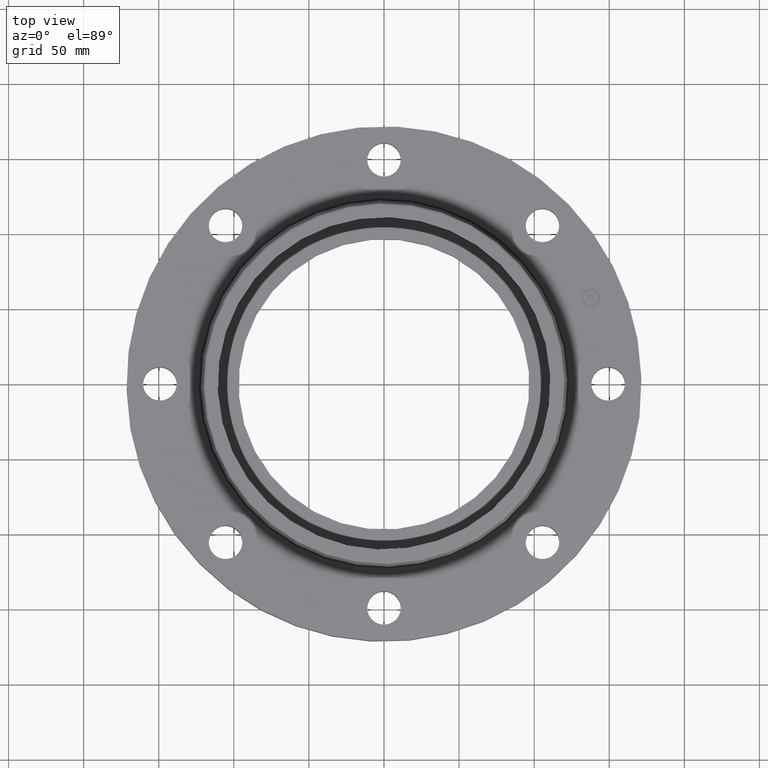
[diagram: clean part render]
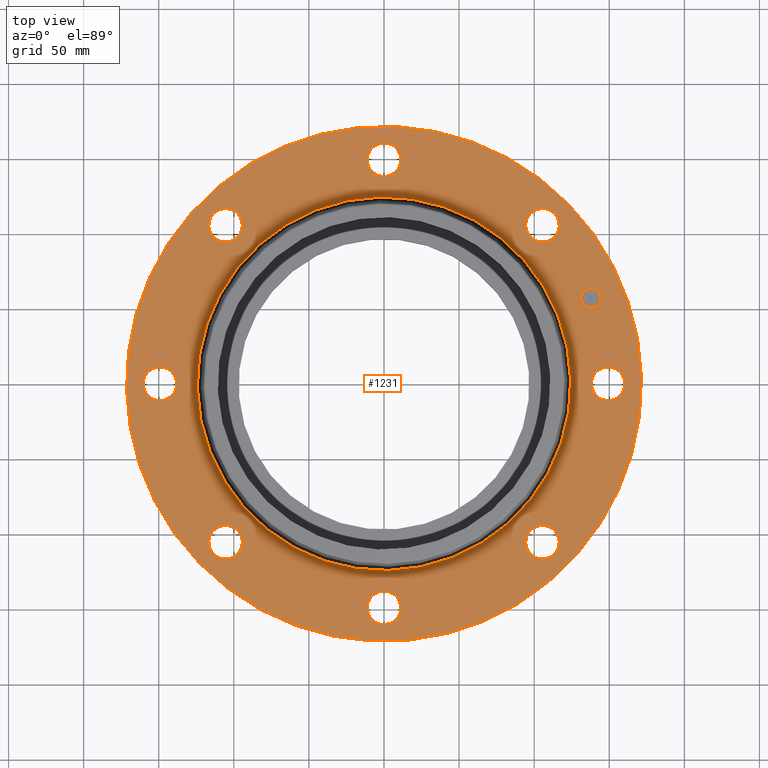
[diagram: same view with one face highlighted and labeled with its STEP entity id]
A machine part, top view. The second image highlights one B-rep face of the part: STEP entity #1231.
In plain terms, the highlighted planar face has unit normal (0, 0, -1).
Its self-contained STEP definition (entity closure, byte-faithful):
#457=AXIS2_PLACEMENT_3D('Circle Axis2P3D',#455,#456,$) ;
#476=AXIS2_PLACEMENT_3D('Circle Axis2P3D',#474,#475,$) ;
#507=AXIS2_PLACEMENT_3D('Circle Axis2P3D',#505,#506,$) ;
#519=AXIS2_PLACEMENT_3D('Circle Axis2P3D',#517,#518,$) ;
#550=AXIS2_PLACEMENT_3D('Circle Axis2P3D',#548,#549,$) ;
#562=AXIS2_PLACEMENT_3D('Circle Axis2P3D',#560,#561,$) ;
#593=AXIS2_PLACEMENT_3D('Circle Axis2P3D',#591,#592,$) ;
#605=AXIS2_PLACEMENT_3D('Circle Axis2P3D',#603,#604,$) ;
#636=AXIS2_PLACEMENT_3D('Circle Axis2P3D',#634,#635,$) ;
#648=AXIS2_PLACEMENT_3D('Circle Axis2P3D',#646,#647,$) ;
#679=AXIS2_PLACEMENT_3D('Circle Axis2P3D',#677,#678,$) ;
#691=AXIS2_PLACEMENT_3D('Circle Axis2P3D',#689,#690,$) ;
#722=AXIS2_PLACEMENT_3D('Circle Axis2P3D',#720,#721,$) ;
#734=AXIS2_PLACEMENT_3D('Circle Axis2P3D',#732,#733,$) ;
#765=AXIS2_PLACEMENT_3D('Circle Axis2P3D',#763,#764,$) ;
#777=AXIS2_PLACEMENT_3D('Circle Axis2P3D',#775,#776,$) ;
#808=AXIS2_PLACEMENT_3D('Circle Axis2P3D',#806,#807,$) ;
#820=AXIS2_PLACEMENT_3D('Circle Axis2P3D',#818,#819,$) ;
#837=AXIS2_PLACEMENT_3D('Circle Axis2P3D',#835,#836,$) ;
#872=AXIS2_PLACEMENT_3D('Circle Axis2P3D',#870,#871,$) ;
#1171=AXIS2_PLACEMENT_3D('Plane Axis2P3D',#1168,#1169,#1170) ;
#1215=AXIS2_PLACEMENT_3D('Circle Axis2P3D',#1213,#1214,$) ;
#1224=AXIS2_PLACEMENT_3D('Circle Axis2P3D',#1222,#1223,$) ;
#452=CARTESIAN_POINT('Vertex',(-3.23612238559,-5.92368229278,1.06)) ;
#455=CARTESIAN_POINT('Axis2P3D Location',(0.,0.,1.06)) ;
#459=CARTESIAN_POINT('Vertex',(3.23612238559,5.92368229278,1.06)) ;
#474=CARTESIAN_POINT('Axis2P3D Location',(0.,0.,1.06)) ;
#495=CARTESIAN_POINT('Vertex',(-3.73205050229,4.27812973319,1.06)) ;
#502=CARTESIAN_POINT('Vertex',(-4.57645417668,4.03037494578,1.06)) ;
#505=CARTESIAN_POINT('Axis2P3D Location',(-4.15425233949,4.15425233949,1.06)) ;
#517=CARTESIAN_POINT('Axis2P3D Location',(-4.15425233949,4.15425233949,1.06)) ;
#538=CARTESIAN_POINT('Vertex',(-5.66405276304,0.386136327233,1.06)) ;
#545=CARTESIAN_POINT('Vertex',(-6.08594723701,-0.386136327233,1.06)) ;
#548=CARTESIAN_POINT('Axis2P3D Location',(-5.87500000002,-1.07921999175E-015,1.06)) ;
#560=CARTESIAN_POINT('Axis2P3D Location',(-5.87500000002,-1.07921999175E-015,1.06)) ;
#581=CARTESIAN_POINT('Vertex',(-4.27812973319,-3.73205050229,1.06)) ;
#588=CARTESIAN_POINT('Vertex',(-4.03037494578,-4.57645417668,1.06)) ;
#591=CARTESIAN_POINT('Axis2P3D Location',(-4.15425233949,-4.15425233949,1.06)) ;
#603=CARTESIAN_POINT('Axis2P3D Location',(-4.15425233949,-4.15425233949,1.06)) ;
#624=CARTESIAN_POINT('Vertex',(-0.386136327233,-5.66405276304,1.06)) ;
#631=CARTESIAN_POINT('Vertex',(0.386136327233,-6.08594723701,1.06)) ;
#634=CARTESIAN_POINT('Axis2P3D Location',(7.19479994502E-016,-5.87500000002,1.06)) ;
#646=CARTESIAN_POINT('Axis2P3D Location',(7.19479994502E-016,-5.87500000002,1.06)) ;
#667=CARTESIAN_POINT('Vertex',(3.73205050229,-4.27812973319,1.06)) ;
#674=CARTESIAN_POINT('Vertex',(4.57645417668,-4.03037494578,1.06)) ;
#677=CARTESIAN_POINT('Axis2P3D Location',(4.15425233949,-4.15425233949,1.06)) ;
#689=CARTESIAN_POINT('Axis2P3D Location',(4.15425233949,-4.15425233949,1.06)) ;
#710=CARTESIAN_POINT('Vertex',(5.66405276304,-0.386136327233,1.06)) ;
#717=CARTESIAN_POINT('Vertex',(6.08594723701,0.386136327233,1.06)) ;
#720=CARTESIAN_POINT('Axis2P3D Location',(5.87500000002,-7.59224940954E-016,1.06)) ;
#732=CARTESIAN_POINT('Axis2P3D Location',(5.87500000002,-7.59224940954E-016,1.06)) ;
#753=CARTESIAN_POINT('Vertex',(4.27812973319,3.73205050229,1.06)) ;
#760=CARTESIAN_POINT('Vertex',(4.03037494578,4.57645417668,1.06)) ;
#763=CARTESIAN_POINT('Axis2P3D Location',(4.15425233949,4.15425233949,1.06)) ;
#775=CARTESIAN_POINT('Axis2P3D Location',(4.15425233949,4.15425233949,1.06)) ;
#796=CARTESIAN_POINT('Vertex',(-0.386136327233,6.08594723701,1.06)) ;
#803=CARTESIAN_POINT('Vertex',(0.386136327233,5.66405276304,1.06)) ;
#806=CARTESIAN_POINT('Axis2P3D Location',(0.,5.87500000002,1.06)) ;
#818=CARTESIAN_POINT('Axis2P3D Location',(0.,5.87500000002,1.06)) ;
#835=CARTESIAN_POINT('Axis2P3D Location',(0.,0.,1.06)) ;
#839=CARTESIAN_POINT('Vertex',(2.3469538821,4.29607026462,1.06)) ;
#841=CARTESIAN_POINT('Vertex',(-2.3469538821,-4.29607026462,1.06)) ;
#870=CARTESIAN_POINT('Axis2P3D Location',(0.,0.,1.06)) ;
#1168=CARTESIAN_POINT('Axis2P3D Location',(0.,6.75000000003,1.06)) ;
#1213=CARTESIAN_POINT('Axis2P3D Location',(5.42779225353,2.24826516515,1.06)) ;
#1217=CARTESIAN_POINT('Vertex',(5.33307810401,2.47692534945,1.06)) ;
#1219=CARTESIAN_POINT('Vertex',(5.52250640304,2.01960498086,1.06)) ;
#1222=CARTESIAN_POINT('Axis2P3D Location',(5.42779225353,2.24826516515,1.06)) ;
#456=DIRECTION('Axis2P3D Direction',(0.,0.,-0.0393700787402)) ;
#475=DIRECTION('Axis2P3D Direction',(0.,0.,-0.0393700787402)) ;
#506=DIRECTION('Axis2P3D Direction',(0.,0.,-0.0393700787402)) ;
#518=DIRECTION('Axis2P3D Direction',(0.,0.,-0.0393700787402)) ;
#549=DIRECTION('Axis2P3D Direction',(0.,0.,-0.0393700787402)) ;
#561=DIRECTION('Axis2P3D Direction',(0.,0.,-0.0393700787402)) ;
#592=DIRECTION('Axis2P3D Direction',(0.,0.,-0.0393700787402)) ;
#604=DIRECTION('Axis2P3D Direction',(0.,0.,-0.0393700787402)) ;
#635=DIRECTION('Axis2P3D Direction',(-0.,0.,-0.0393700787402)) ;
#647=DIRECTION('Axis2P3D Direction',(-0.,0.,-0.0393700787402)) ;
#678=DIRECTION('Axis2P3D Direction',(-0.,0.,-0.0393700787402)) ;
#690=DIRECTION('Axis2P3D Direction',(-0.,0.,-0.0393700787402)) ;
#721=DIRECTION('Axis2P3D Direction',(0.,-0.,-0.0393700787402)) ;
#733=DIRECTION('Axis2P3D Direction',(0.,-0.,-0.0393700787402)) ;
#764=DIRECTION('Axis2P3D Direction',(0.,-0.,-0.0393700787402)) ;
#776=DIRECTION('Axis2P3D Direction',(0.,-0.,-0.0393700787402)) ;
#807=DIRECTION('Axis2P3D Direction',(0.,-0.,-0.0393700787402)) ;
#819=DIRECTION('Axis2P3D Direction',(0.,-0.,-0.0393700787402)) ;
#836=DIRECTION('Axis2P3D Direction',(0.,0.,-0.0393700787402)) ;
#871=DIRECTION('Axis2P3D Direction',(0.,0.,-0.0393700787402)) ;
#1169=DIRECTION('Axis2P3D Direction',(0.,0.,-0.0393700787402)) ;
#1170=DIRECTION('Axis2P3D XDirection',(0.0393700787402,0.,0.)) ;
#1214=DIRECTION('Axis2P3D Direction',(0.,0.,-0.0393700787402)) ;
#1223=DIRECTION('Axis2P3D Direction',(0.,0.,-0.0393700787402)) ;
#1174=ORIENTED_EDGE('',*,*,#478,.F.) ;
#1175=ORIENTED_EDGE('',*,*,#461,.F.) ;
#1178=ORIENTED_EDGE('',*,*,#810,.T.) ;
#1179=ORIENTED_EDGE('',*,*,#822,.T.) ;
#1182=ORIENTED_EDGE('',*,*,#874,.T.) ;
#1183=ORIENTED_EDGE('',*,*,#843,.T.) ;
#1186=ORIENTED_EDGE('',*,*,#767,.T.) ;
#1187=ORIENTED_EDGE('',*,*,#779,.T.) ;
#1190=ORIENTED_EDGE('',*,*,#724,.T.) ;
#1191=ORIENTED_EDGE('',*,*,#736,.T.) ;
#1194=ORIENTED_EDGE('',*,*,#681,.T.) ;
#1195=ORIENTED_EDGE('',*,*,#693,.T.) ;
#1198=ORIENTED_EDGE('',*,*,#638,.T.) ;
#1199=ORIENTED_EDGE('',*,*,#650,.T.) ;
#1202=ORIENTED_EDGE('',*,*,#595,.T.) ;
#1203=ORIENTED_EDGE('',*,*,#607,.T.) ;
#1206=ORIENTED_EDGE('',*,*,#552,.T.) ;
#1207=ORIENTED_EDGE('',*,*,#564,.T.) ;
#1210=ORIENTED_EDGE('',*,*,#509,.T.) ;
#1211=ORIENTED_EDGE('',*,*,#521,.T.) ;
#1228=ORIENTED_EDGE('',*,*,#1221,.T.) ;
#1229=ORIENTED_EDGE('',*,*,#1226,.T.) ;
#1180=FACE_BOUND('',#1177,.T.) ;
#1184=FACE_BOUND('',#1181,.T.) ;
#1188=FACE_BOUND('',#1185,.T.) ;
#1192=FACE_BOUND('',#1189,.T.) ;
#1196=FACE_BOUND('',#1193,.T.) ;
#1200=FACE_BOUND('',#1197,.T.) ;
#1204=FACE_BOUND('',#1201,.T.) ;
#1208=FACE_BOUND('',#1205,.T.) ;
#1212=FACE_BOUND('',#1209,.T.) ;
#1230=FACE_BOUND('',#1227,.T.) ;
#1231=ADVANCED_FACE('PartBody',(#1176,#1180,#1184,#1188,#1192,#1196,#1200,#1204,#1208,#1212,#1230),#1172,.F.) ;
#458=CIRCLE('generated circle',#457,6.75000000003) ;
#477=CIRCLE('generated circle',#476,6.75000000003) ;
#508=CIRCLE('generated circle',#507,0.440000000002) ;
#520=CIRCLE('generated circle',#519,0.440000000002) ;
#551=CIRCLE('generated circle',#550,0.440000000002) ;
#563=CIRCLE('generated circle',#562,0.440000000002) ;
#594=CIRCLE('generated circle',#593,0.440000000002) ;
#606=CIRCLE('generated circle',#605,0.440000000002) ;
#637=CIRCLE('generated circle',#636,0.440000000002) ;
#649=CIRCLE('generated circle',#648,0.440000000002) ;
#680=CIRCLE('generated circle',#679,0.440000000002) ;
#692=CIRCLE('generated circle',#691,0.440000000002) ;
#723=CIRCLE('generated circle',#722,0.440000000002) ;
#735=CIRCLE('generated circle',#734,0.440000000002) ;
#766=CIRCLE('generated circle',#765,0.440000000002) ;
#778=CIRCLE('generated circle',#777,0.440000000002) ;
#809=CIRCLE('generated circle',#808,0.440000000002) ;
#821=CIRCLE('generated circle',#820,0.440000000002) ;
#838=CIRCLE('generated circle',#837,4.89534597789) ;
#873=CIRCLE('generated circle',#872,4.89534597789) ;
#1216=CIRCLE('generated circle',#1215,0.247500000001) ;
#1225=CIRCLE('generated circle',#1224,0.247500000001) ;
#461=EDGE_CURVE('',#453,#460,#458,.T.) ;
#478=EDGE_CURVE('',#460,#453,#477,.T.) ;
#509=EDGE_CURVE('',#496,#503,#508,.T.) ;
#521=EDGE_CURVE('',#503,#496,#520,.T.) ;
#552=EDGE_CURVE('',#539,#546,#551,.T.) ;
#564=EDGE_CURVE('',#546,#539,#563,.T.) ;
#595=EDGE_CURVE('',#582,#589,#594,.T.) ;
#607=EDGE_CURVE('',#589,#582,#606,.T.) ;
#638=EDGE_CURVE('',#625,#632,#637,.T.) ;
#650=EDGE_CURVE('',#632,#625,#649,.T.) ;
#681=EDGE_CURVE('',#668,#675,#680,.T.) ;
#693=EDGE_CURVE('',#675,#668,#692,.T.) ;
#724=EDGE_CURVE('',#711,#718,#723,.T.) ;
#736=EDGE_CURVE('',#718,#711,#735,.T.) ;
#767=EDGE_CURVE('',#754,#761,#766,.T.) ;
#779=EDGE_CURVE('',#761,#754,#778,.T.) ;
#810=EDGE_CURVE('',#797,#804,#809,.T.) ;
#822=EDGE_CURVE('',#804,#797,#821,.T.) ;
#843=EDGE_CURVE('',#840,#842,#838,.T.) ;
#874=EDGE_CURVE('',#842,#840,#873,.T.) ;
#1221=EDGE_CURVE('',#1218,#1220,#1216,.T.) ;
#1226=EDGE_CURVE('',#1220,#1218,#1225,.T.) ;
#1173=EDGE_LOOP('',(#1174,#1175)) ;
#1177=EDGE_LOOP('',(#1178,#1179)) ;
#1181=EDGE_LOOP('',(#1182,#1183)) ;
#1185=EDGE_LOOP('',(#1186,#1187)) ;
#1189=EDGE_LOOP('',(#1190,#1191)) ;
#1193=EDGE_LOOP('',(#1194,#1195)) ;
#1197=EDGE_LOOP('',(#1198,#1199)) ;
#1201=EDGE_LOOP('',(#1202,#1203)) ;
#1205=EDGE_LOOP('',(#1206,#1207)) ;
#1209=EDGE_LOOP('',(#1210,#1211)) ;
#1227=EDGE_LOOP('',(#1228,#1229)) ;
#1176=FACE_OUTER_BOUND('',#1173,.T.) ;
#1172=PLANE('',#1171) ;
#453=VERTEX_POINT('',#452) ;
#460=VERTEX_POINT('',#459) ;
#496=VERTEX_POINT('',#495) ;
#503=VERTEX_POINT('',#502) ;
#539=VERTEX_POINT('',#538) ;
#546=VERTEX_POINT('',#545) ;
#582=VERTEX_POINT('',#581) ;
#589=VERTEX_POINT('',#588) ;
#625=VERTEX_POINT('',#624) ;
#632=VERTEX_POINT('',#631) ;
#668=VERTEX_POINT('',#667) ;
#675=VERTEX_POINT('',#674) ;
#711=VERTEX_POINT('',#710) ;
#718=VERTEX_POINT('',#717) ;
#754=VERTEX_POINT('',#753) ;
#761=VERTEX_POINT('',#760) ;
#797=VERTEX_POINT('',#796) ;
#804=VERTEX_POINT('',#803) ;
#840=VERTEX_POINT('',#839) ;
#842=VERTEX_POINT('',#841) ;
#1218=VERTEX_POINT('',#1217) ;
#1220=VERTEX_POINT('',#1219) ;